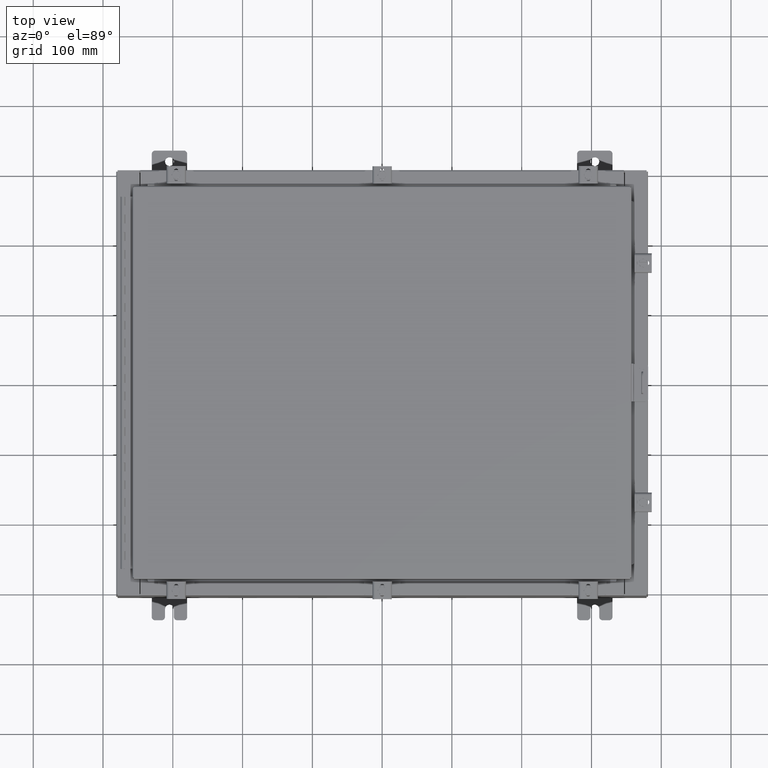
[diagram: clean part render]
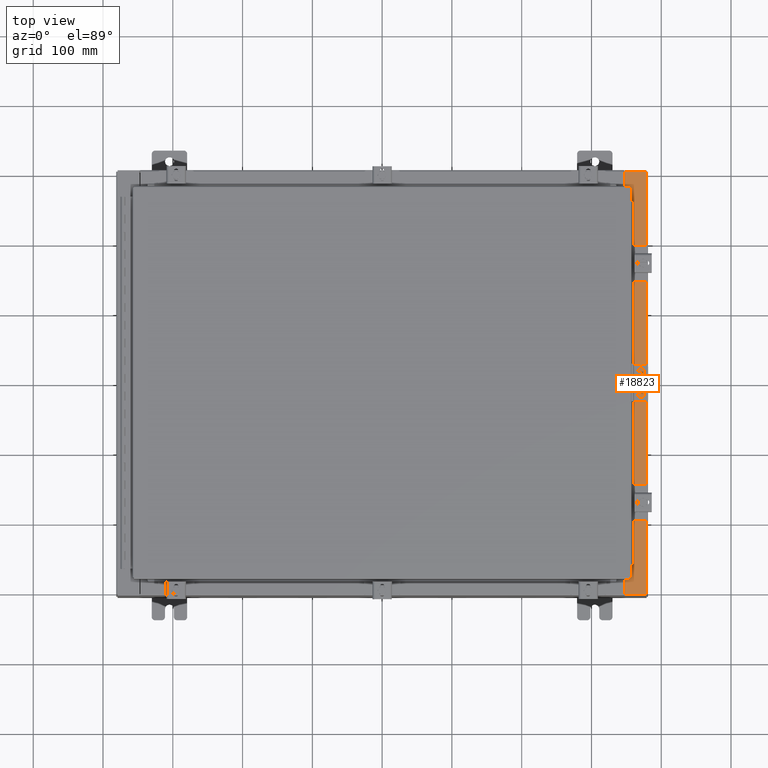
[diagram: same view with one face highlighted and labeled with its STEP entity id]
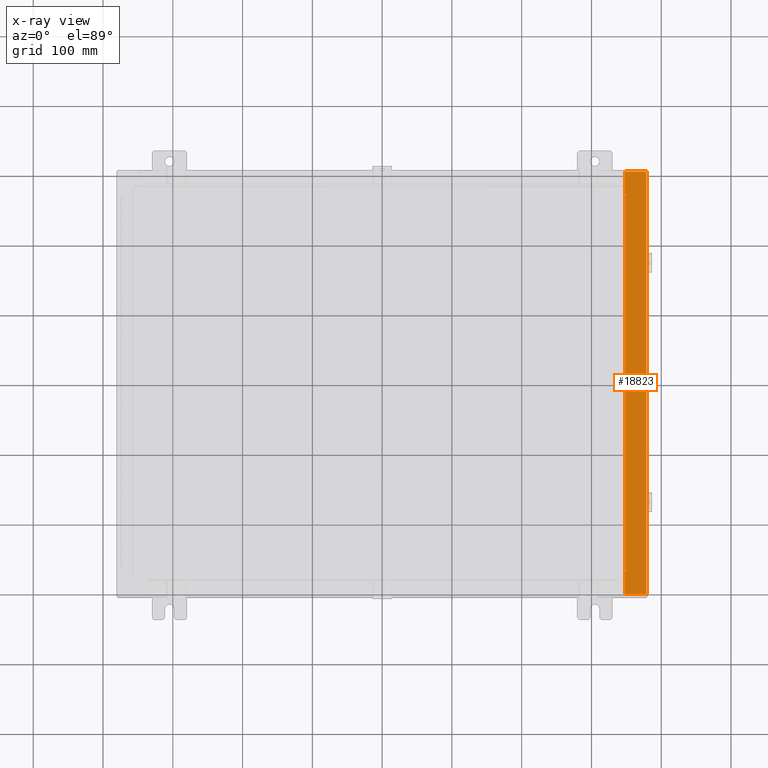
[diagram: x-ray of the same camera — body ghosted, the highlighted face saturated]
A machine part, top view. The second image highlights one B-rep face of the part: STEP entity #18823.
The next image is the same camera in x-ray: the body ghosted, the highlighted face saturated — about 0% of this face is hidden behind the body in this view.
In plain terms, the highlighted planar face has unit normal (-0, -0, -1).
Its self-contained STEP definition (entity closure, byte-faithful):
#848 = CARTESIAN_POINT ( 'NONE',  ( 13.75005000000002800, 10.63109999999999300, 7.925300000000011600 ) ) ;
#1115 = CARTESIAN_POINT ( 'NONE',  ( 13.75005000000002800, 10.59374999999999300, 7.925300000000007100 ) ) ;
#2189 = DIRECTION ( 'NONE',  ( 1.000000000000000000, 0.0000000000000000000, 2.170286390200049500E-014 ) ) ;
#3004 = LINE ( 'NONE', #26595, #8705 ) ;
#3286 = DIRECTION ( 'NONE',  ( -1.000000000000000000, 0.0000000000000000000, -2.170286390200049500E-014 ) ) ;
#3547 = LINE ( 'NONE', #6434, #16058 ) ;
#4037 = CARTESIAN_POINT ( 'NONE',  ( 13.69970000000003000, -10.63110000000000200, 7.925300000000008900 ) ) ;
#4139 = DIRECTION ( 'NONE',  ( -0.0000000000000000000, 1.000000000000000000, -0.0000000000000000000 ) ) ;
#4185 = DIRECTION ( 'NONE',  ( -1.000000000000000000, 0.0000000000000000000, 0.0000000000000000000 ) ) ;
#4285 = CARTESIAN_POINT ( 'NONE',  ( 13.71270000000003000, -10.59375000000000200, 7.925300000000011600 ) ) ;
#4566 = DIRECTION ( 'NONE',  ( -4.379057701015054300E-047, -1.000000000000000000, 4.581600452255731000E-017 ) ) ;
#4593 = ORIENTED_EDGE ( 'NONE', *, *, #7654, .T. ) ;
#5129 = LINE ( 'NONE', #22050, #30503 ) ;
#5339 = VERTEX_POINT ( 'NONE', #29964 ) ;
#5546 = CARTESIAN_POINT ( 'NONE',  ( 13.69970000000003000, 10.63109999999999500, 7.925300000000008900 ) ) ;
#6129 = VERTEX_POINT ( 'NONE', #31311 ) ;
#6318 = CARTESIAN_POINT ( 'NONE',  ( 13.75005000000002800, 10.61242499999999300, 7.925300000000011600 ) ) ;
#6346 = CARTESIAN_POINT ( 'NONE',  ( 13.75005000000002800, -10.63110000000000200, 7.925300000000008900 ) ) ;
#6434 = CARTESIAN_POINT ( 'NONE',  ( 13.71270000000003000, -10.59375000000000200, 7.925300000000011600 ) ) ;
#6998 = CARTESIAN_POINT ( 'NONE',  ( 13.69970000000003000, -10.63110000000000200, 7.925300000000010700 ) ) ;
#7598 = VECTOR ( 'NONE', #3286, 39.37007874015748100 ) ;
#7626 = CARTESIAN_POINT ( 'NONE',  ( 4.972393517341157600E-014, 3.631055806426276900E-016, 7.925300000000094200 ) ) ;
#7654 = EDGE_CURVE ( 'NONE', #29386, #22321, #20523, .T. ) ;
#8540 = VECTOR ( 'NONE', #2189, 39.37007874015748100 ) ;
#8705 = VECTOR ( 'NONE', #16405, 39.37007874015748100 ) ;
#8846 = DIRECTION ( 'NONE',  ( 1.000000000000000000, 0.0000000000000000000, 0.0000000000000000000 ) ) ;
#8852 = FACE_OUTER_BOUND ( 'NONE', #9945, .T. ) ;
#9322 = ORIENTED_EDGE ( 'NONE', *, *, #19591, .F. ) ;
#9568 = EDGE_CURVE ( 'NONE', #30366, #11941, #23901, .T. ) ;
#9945 = EDGE_LOOP ( 'NONE', ( #22221, #30529, #30037, #27358, #4593, #19288, #9322, #18949, #30875, #25707, #11923, #24661 ) ) ;
#10190 = DIRECTION ( 'NONE',  ( -1.000000000000000000, 0.0000000000000000000, 6.241167087353086200E-015 ) ) ;
#10513 = LINE ( 'NONE', #21768, #23180 ) ;
#11230 = EDGE_CURVE ( 'NONE', #22321, #24028, #15810, .T. ) ;
#11923 = ORIENTED_EDGE ( 'NONE', *, *, #13206, .F. ) ;
#11941 = VERTEX_POINT ( 'NONE', #15400 ) ;
#12341 = EDGE_CURVE ( 'NONE', #23173, #22681, #15350, .T. ) ;
#12349 = EDGE_CURVE ( 'NONE', #23173, #30366, #28025, .T. ) ;
#13206 = EDGE_CURVE ( 'NONE', #11941, #19889, #10513, .T. ) ;
#13430 = CARTESIAN_POINT ( 'NONE',  ( 13.75005000000002800, -10.61242500000000200, 7.925300000000011600 ) ) ;
#13638 = LINE ( 'NONE', #848, #7598 ) ;
#13831 = VECTOR ( 'NONE', #26397, 39.37007874015748100 ) ;
#13967 = EDGE_CURVE ( 'NONE', #19889, #5339, #3547, .T. ) ;
#14060 = VERTEX_POINT ( 'NONE', #16990 ) ;
#14234 = DIRECTION ( 'NONE',  ( 1.000000000000000000, 0.0000000000000000000, -6.241167087353087800E-015 ) ) ;
#15350 = LINE ( 'NONE', #19671, #17691 ) ;
#15400 = CARTESIAN_POINT ( 'NONE',  ( 13.75005000000002800, -10.59375000000000200, 7.925300000000007100 ) ) ;
#15810 = LINE ( 'NONE', #17604, #29314 ) ;
#15930 = DIRECTION ( 'NONE',  ( 1.000000000000000000, 0.0000000000000000000, 0.0000000000000000000 ) ) ;
#16058 = VECTOR ( 'NONE', #4139, 39.37007874015748100 ) ;
#16258 = VERTEX_POINT ( 'NONE', #1115 ) ;
#16385 = EDGE_CURVE ( 'NONE', #16258, #14060, #17708, .T. ) ;
#16405 = DIRECTION ( 'NONE',  ( 1.000000000000000000, 0.0000000000000000000, 0.0000000000000000000 ) ) ;
#16990 = CARTESIAN_POINT ( 'NONE',  ( 13.75005000000002800, 10.63109999999999300, 7.925300000000007100 ) ) ;
#17329 = CARTESIAN_POINT ( 'NONE',  ( 13.69970000000003000, -11.92530000000000400, 7.925300000000009800 ) ) ;
#17604 = CARTESIAN_POINT ( 'NONE',  ( 13.69970000000003000, 3.631055806426237500E-016, 7.925300000000008900 ) ) ;
#17691 = VECTOR ( 'NONE', #4566, 39.37007874015748100 ) ;
#17708 = CIRCLE ( 'NONE', #21858, 0.01867499999999949400 ) ;
#18199 = AXIS2_PLACEMENT_3D ( 'NONE', #7626, #25379, #10190 ) ;
#18757 = CARTESIAN_POINT ( 'NONE',  ( 4.972393517341157600E-014, 11.92529999999999600, 7.925300000000094200 ) ) ;
#18823 = ADVANCED_FACE ( 'NONE', ( #8852 ), #27858, .F. ) ;
#18949 = ORIENTED_EDGE ( 'NONE', *, *, #16385, .F. ) ;
#19288 = ORIENTED_EDGE ( 'NONE', *, *, #11230, .T. ) ;
#19591 = EDGE_CURVE ( 'NONE', #14060, #24028, #13638, .T. ) ;
#19671 = CARTESIAN_POINT ( 'NONE',  ( 13.69970000000003000, 3.631055806426237500E-016, 7.925300000000008900 ) ) ;
#19889 = VERTEX_POINT ( 'NONE', #4285 ) ;
#20523 = LINE ( 'NONE', #18757, #13831 ) ;
#20620 = LINE ( 'NONE', #29398, #26581 ) ;
#21768 = CARTESIAN_POINT ( 'NONE',  ( 13.75005000000002800, -10.59375000000000200, 7.925300000000011600 ) ) ;
#21858 = AXIS2_PLACEMENT_3D ( 'NONE', #6318, #24015, #8846 ) ;
#22050 = CARTESIAN_POINT ( 'NONE',  ( 14.91230000000002900, -11.92530000000000400, 7.925300000000000900 ) ) ;
#22221 = ORIENTED_EDGE ( 'NONE', *, *, #12349, .F. ) ;
#22321 = VERTEX_POINT ( 'NONE', #29010 ) ;
#22681 = VERTEX_POINT ( 'NONE', #17329 ) ;
#23173 = VERTEX_POINT ( 'NONE', #4037 ) ;
#23180 = VECTOR ( 'NONE', #4185, 39.37007874015748100 ) ;
#23901 = CIRCLE ( 'NONE', #30747, 0.01867499999999949400 ) ;
#24015 = DIRECTION ( 'NONE',  ( 6.241167087353086200E-015, 4.581600452255730400E-017, 1.000000000000000000 ) ) ;
#24028 = VERTEX_POINT ( 'NONE', #5546 ) ;
#24590 = DIRECTION ( 'NONE',  ( -9.163200904511462000E-017, -1.000000000000000000, 4.581600452255787700E-017 ) ) ;
#24661 = ORIENTED_EDGE ( 'NONE', *, *, #9568, .F. ) ;
#24666 = EDGE_CURVE ( 'NONE', #29386, #6129, #5129, .T. ) ;
#25233 = DIRECTION ( 'NONE',  ( -4.379057701015054300E-047, -1.000000000000000000, 4.581600452255731000E-017 ) ) ;
#25379 = DIRECTION ( 'NONE',  ( -6.241167087353086200E-015, -4.581600452255731000E-017, -1.000000000000000000 ) ) ;
#25707 = ORIENTED_EDGE ( 'NONE', *, *, #13967, .F. ) ;
#26397 = DIRECTION ( 'NONE',  ( -1.000000000000000000, 0.0000000000000000000, 6.241167087353087800E-015 ) ) ;
#26581 = VECTOR ( 'NONE', #14234, 39.37007874015748100 ) ;
#26595 = CARTESIAN_POINT ( 'NONE',  ( 13.71270000000003000, 10.59374999999999300, 7.925300000000011600 ) ) ;
#27358 = ORIENTED_EDGE ( 'NONE', *, *, #24666, .F. ) ;
#27858 = PLANE ( 'NONE',  #18199 ) ;
#28025 = LINE ( 'NONE', #6998, #8540 ) ;
#28724 = CARTESIAN_POINT ( 'NONE',  ( 14.91230000000003000, 11.92529999999999600, 7.925300000000000000 ) ) ;
#29010 = CARTESIAN_POINT ( 'NONE',  ( 13.69970000000003000, 11.92529999999999600, 7.925300000000008900 ) ) ;
#29314 = VECTOR ( 'NONE', #25233, 39.37007874015748100 ) ;
#29386 = VERTEX_POINT ( 'NONE', #28724 ) ;
#29398 = CARTESIAN_POINT ( 'NONE',  ( 4.972393517341157600E-014, -11.92530000000000400, 7.925300000000095000 ) ) ;
#29460 = EDGE_CURVE ( 'NONE', #5339, #16258, #3004, .T. ) ;
#29518 = EDGE_CURVE ( 'NONE', #22681, #6129, #20620, .T. ) ;
#29964 = CARTESIAN_POINT ( 'NONE',  ( 13.71270000000003000, 10.59374999999999300, 7.925300000000011600 ) ) ;
#30037 = ORIENTED_EDGE ( 'NONE', *, *, #29518, .T. ) ;
#30366 = VERTEX_POINT ( 'NONE', #6346 ) ;
#30503 = VECTOR ( 'NONE', #24590, 39.37007874015748100 ) ;
#30529 = ORIENTED_EDGE ( 'NONE', *, *, #12341, .T. ) ;
#30747 = AXIS2_PLACEMENT_3D ( 'NONE', #13430, #31162, #15930 ) ;
#30875 = ORIENTED_EDGE ( 'NONE', *, *, #29460, .F. ) ;
#31162 = DIRECTION ( 'NONE',  ( 6.241167087353086200E-015, 4.581600452255730400E-017, 1.000000000000000000 ) ) ;
#31311 = CARTESIAN_POINT ( 'NONE',  ( 14.91230000000003000, -11.92530000000000400, 7.925300000000000900 ) ) ;